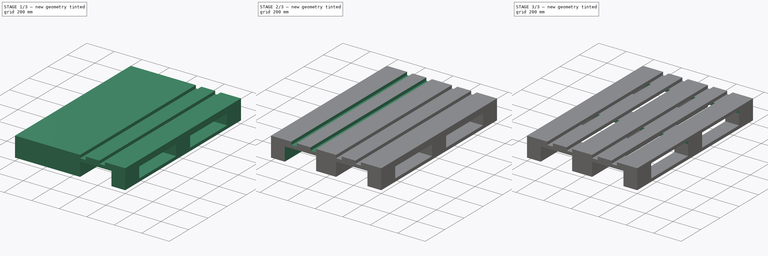
[diagram: build sequence overview — one tinted view per stage of 3, left to right]
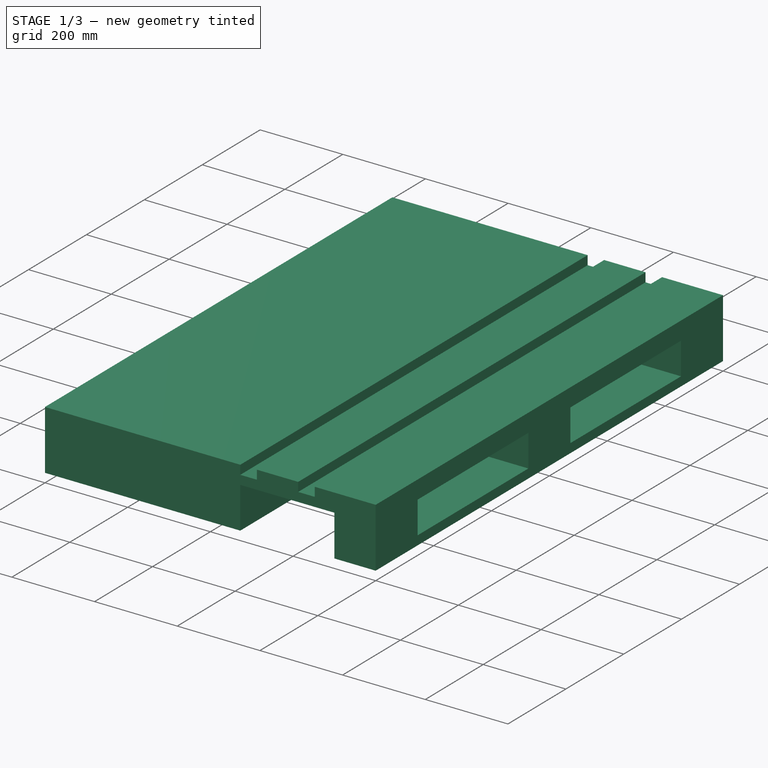
[diagram: stage 1 of 3 — iso view after this stage's code; geometry added in this stage tinted green]
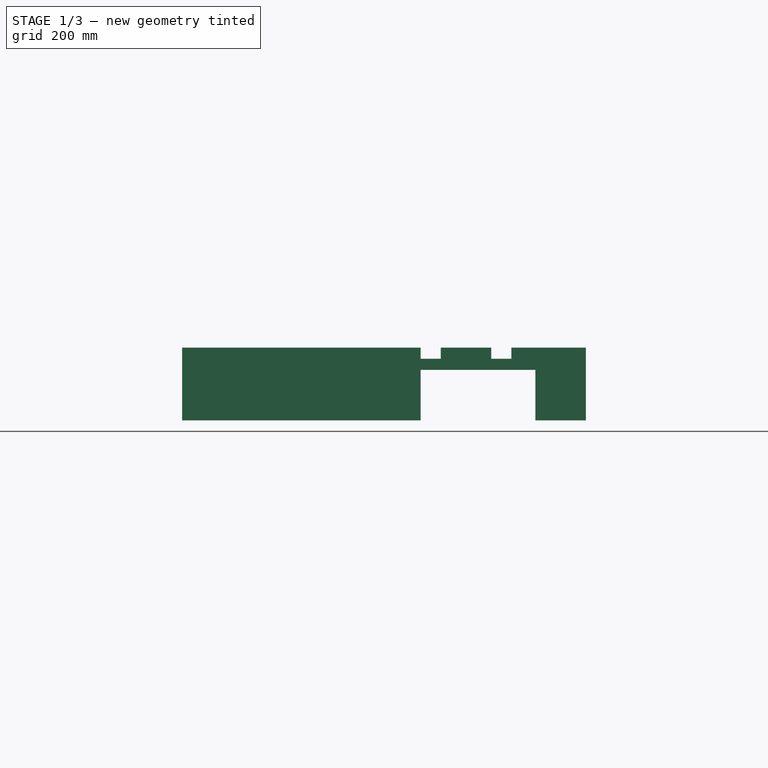
[diagram: stage 1 of 3 — front view after this stage's code; geometry added in this stage tinted green]
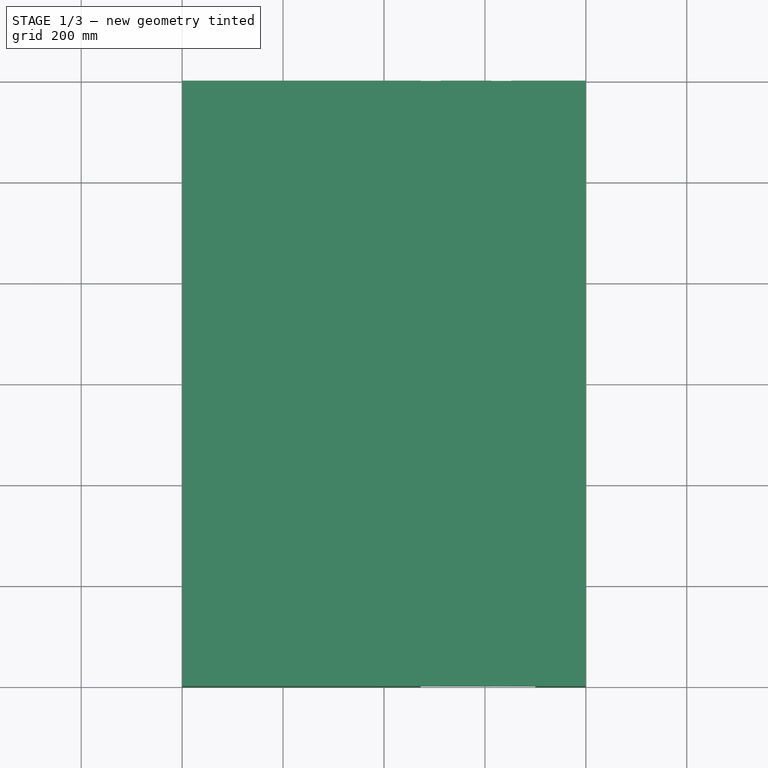
[diagram: stage 1 of 3 — top view after this stage's code; geometry added in this stage tinted green]
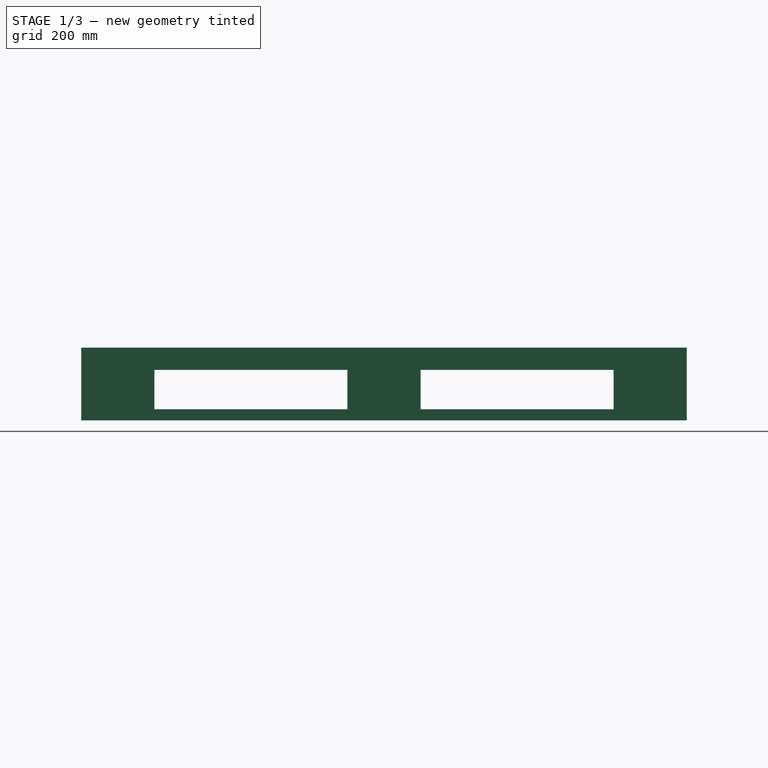
[diagram: stage 1 of 3 — right view after this stage's code; geometry added in this stage tinted green]
FCSTD DOCUMENT  (FreeCAD 0.19R24267 +148 (Git))
Label: Europalette
License: All rights reserved
LicenseURL: http://en.wikipedia.org/wiki/All_rights_reserved
objects: Sketcher::SketchObject×5, PartDesign::Pocket×4, PartDesign::Pad×1, PartDesign::Body×1
note: 16 computed .brp shape members not serialized (recipe doc carries the construction recipe); baked Part::Feature solids carry a one-line shape summary decoded from their .brp

FEATURE [Sketcher::SketchObject] Sketch
  FullyConstrained = true
  MapMode = 5
  Placement = pos=(0,0,0) rot=(0.57735,0.57735,0.57735;2.0944rad)
  Support = -> [YZ_Plane]
  sketch-geometry (12):
    g0: LineSegment StartX=-600 StartY=-72 StartZ=0 EndX=600 EndY=-72 EndZ=0
    g1: LineSegment StartX=600 StartY=-72 StartZ=0 EndX=600 EndY=72 EndZ=0
    g2: LineSegment StartX=600 StartY=72 StartZ=0 EndX=-600 EndY=72 EndZ=0
    g3: LineSegment StartX=-600 StartY=72 StartZ=0 EndX=-600 EndY=-72 EndZ=0
    g4: LineSegment StartX=-455 StartY=28 StartZ=0 EndX=-72.5 EndY=28 EndZ=0
    g5: LineSegment StartX=-72.5 StartY=28 StartZ=0 EndX=-72.5 EndY=-50 EndZ=0
    g6: LineSegment StartX=-72.5 StartY=-50 StartZ=0 EndX=-455 EndY=-50 EndZ=0
    g7: LineSegment StartX=-455 StartY=-50 StartZ=0 EndX=-455 EndY=28 EndZ=0
    g8: LineSegment StartX=72.5 StartY=28 StartZ=0 EndX=455 EndY=28 EndZ=0
    g9: LineSegment StartX=455 StartY=28 StartZ=0 EndX=455 EndY=-50 EndZ=0
    g10: LineSegment StartX=455 StartY=-50 StartZ=0 EndX=72.5 EndY=-50 EndZ=0
    g11: LineSegment StartX=72.5 StartY=-50 StartZ=0 EndX=72.5 EndY=28 EndZ=0
  constraints (34):
    c: Coincident(g0,g1)
    c: Coincident(g1,g2)
    c: Coincident(g2,g3)
    c: Coincident(g3,g0)
    c: Horizontal(g0)
    c: Vertical(g1)
    c: DistanceX(g2,g2) = 1200
    c: DistanceY(g3,g3) = 144
    c: Symmetric(g2,g1,g-2)
    c: Symmetric(g0,g2,g-1)
    c: Coincident(g4,g5)
    c: Coincident(g5,g6)
    c: Coincident(g6,g7)
    c: Coincident(g7,g4)
    c: Horizontal(g4)
    c: Horizontal(g6)
    c: Vertical(g5)
    c: Vertical(g7)
    c: Coincident(g8,g9)
    c: Coincident(g9,g10)
    c: Coincident(g10,g11)
    c: Coincident(g11,g8)
    c: Horizontal(g8)
    c: Horizontal(g10)
    c: Vertical(g9)
    c: Vertical(g11)
    c: DistanceX(g4,g4) = 382.5
    c: DistanceX(g8,g8) = 382.5
    c: Distance(g8,g1) = 145
    c: Distance(g4,g3) = 145
    c: Distance(g6,g0) = 22
    c: DistanceY(g7,g7) = 78
    c: Distance(g10,g0) = 22
    c: Distance(g8,g10) = 78
FEATURE [PartDesign::Pad] Pad
  Direction = (1,1,1)
  Length = 400
  Length2 = 400
  Placement = pos=(0,0,0) rot=(0.57735,0.57735,0.57735;2.0944rad)
  Profile = -> Sketch
  Type = 4
FEATURE [Sketcher::SketchObject] Sketch001
  FullyConstrained = true
  MapMode = 5
  Placement = pos=(-2.665e-13,-600,1.998e-13) rot=(-0.57735,-0.57735,0.57735;4.18879rad)
  Support = -> [Pad]
  sketch-geometry (12):
    g0: LineSegment StartX=72 StartY=72.5 StartZ=0 EndX=-28 EndY=72.5 EndZ=0
    g1: LineSegment StartX=-28 StartY=72.5 StartZ=0 EndX=-28 EndY=300 EndZ=0
    g2: LineSegment StartX=-28 StartY=300 StartZ=0 EndX=72 EndY=300 EndZ=0
    g3: LineSegment StartX=72 StartY=300 StartZ=0 EndX=72 EndY=72.5 EndZ=0
    g4: LineSegment StartX=-72 StartY=72.5 StartZ=0 EndX=-50 EndY=72.5 EndZ=0
    g5: LineSegment StartX=-50 StartY=72.5 StartZ=0 EndX=-50 EndY=112.5 EndZ=0
    g6: LineSegment StartX=-50 StartY=112.5 StartZ=0 EndX=-72 EndY=112.5 EndZ=0
    g7: LineSegment StartX=-72 StartY=112.5 StartZ=0 EndX=-72 EndY=72.5 EndZ=0
    g8: LineSegment StartX=-72 StartY=212.5 StartZ=0 EndX=-50 EndY=212.5 EndZ=0
    g9: LineSegment StartX=-50 StartY=212.5 StartZ=0 EndX=-50 EndY=252.5 EndZ=0
    g10: LineSegment StartX=-50 StartY=252.5 StartZ=0 EndX=-72 EndY=252.5 EndZ=0
    g11: LineSegment StartX=-72 StartY=252.5 StartZ=0 EndX=-72 EndY=212.5 EndZ=0
  constraints (36):
    c: Coincident(g0,g1)
    c: Coincident(g1,g2)
    c: Coincident(g2,g3)
    c: Coincident(g3,g0)
    c: Horizontal(g0)
    c: Horizontal(g2)
    c: Vertical(g1)
    c: Vertical(g3)
    c: Distance(g0) = 100
    c: Distance(g-1,g0) = 72.5
    c: Distance(g0,g2) = 227.5
    c: Distance(g-1,g3) = 72
    c: Coincident(g4,g5)
    c: Coincident(g5,g6)
    c: Coincident(g6,g7)
    c: Coincident(g7,g4)
    c: Horizontal(g4)
    c: Horizontal(g6)
    c: Vertical(g5)
    c: Vertical(g7)
    c: Coincident(g8,g9)
    c: Coincident(g9,g10)
    c: Coincident(g10,g11)
    c: Coincident(g11,g8)
    c: Horizontal(g8)
    c: Horizontal(g10)
    c: Vertical(g9)
    c: Vertical(g11)
    c: DistanceY(g7,g7) = 40
    c: DistanceY(g11,g11) = 40
    c: DistanceX(g6,g6) = 22
    c: DistanceX(g8,g8) = 22
    c: Distance(g8,g6) = 100
    c: Distance(g-1,g4) = 72.5
    c: Distance(g-1,g7) = 72
    c: Distance(g-1,g11) = 72
FEATURE [Sketcher::SketchObject] MirroredSketch
  FullyConstrained = false
  Placement = pos=(0,-600,0) rot=(-0.57735,-0.57735,0.57735;4.18879rad)
  sketch-geometry (12):
    g0: LineSegment StartX=72 StartY=-72.5 StartZ=0 EndX=-28 EndY=-72.5 EndZ=0
    g1: LineSegment StartX=-28 StartY=-72.5 StartZ=0 EndX=-28 EndY=-300 EndZ=0
    g2: LineSegment StartX=-28 StartY=-300 StartZ=0 EndX=72 EndY=-300 EndZ=0
    g3: LineSegment StartX=72 StartY=-300 StartZ=0 EndX=72 EndY=-72.5 EndZ=0
    g4: LineSegment StartX=-72 StartY=-72.5 StartZ=0 EndX=-50 EndY=-72.5 EndZ=0
    g5: LineSegment StartX=-50 StartY=-72.5 StartZ=0 EndX=-50 EndY=-112.5 EndZ=0
    g6: LineSegment StartX=-50 StartY=-112.5 StartZ=0 EndX=-72 EndY=-112.5 EndZ=0
    g7: LineSegment StartX=-72 StartY=-112.5 StartZ=0 EndX=-72 EndY=-72.5 EndZ=0
    g8: LineSegment StartX=-72 StartY=-212.5 StartZ=0 EndX=-50 EndY=-212.5 EndZ=0
    g9: LineSegment StartX=-50 StartY=-212.5 StartZ=0 EndX=-50 EndY=-252.5 EndZ=0
    g10: LineSegment StartX=-50 StartY=-252.5 StartZ=0 EndX=-72 EndY=-252.5 EndZ=0
    g11: LineSegment StartX=-72 StartY=-252.5 StartZ=0 EndX=-72 EndY=-212.5 EndZ=0
  constraints (27):
    c: Coincident(g0,g1)
    c: Coincident(g1,g2)
    c: Coincident(g2,g3)
    c: Coincident(g3,g0)
    c: Horizontal(g0)
    c: Horizontal(g2)
    c: Vertical(g1)
    c: Vertical(g3)
    c: Distance(g0) = 100
    c: Distance(g0,g2) = 227.5
    c: Coincident(g4,g5)
    c: Coincident(g5,g6)
    c: Coincident(g6,g7)
    c: Coincident(g7,g4)
    c: Horizontal(g4)
    c: Horizontal(g6)
    c: Vertical(g5)
    c: Vertical(g7)
    c: Coincident(g8,g9)
    c: Coincident(g9,g10)
    c: Coincident(g10,g11)
    c: Coincident(g11,g8)
    c: Horizontal(g8)
    c: Horizontal(g10)
    c: Vertical(g9)
    c: Vertical(g11)
    c: Distance(g8,g6) = 100
FEATURE [PartDesign::Pocket] Pocket
  BaseFeature = -> Pad
  Length = 1200
  Length2 = 100
  Placement = pos=(0,0,0) rot=(0.57735,0.57735,0.57735;2.0944rad)
  Profile = -> Sketch001
  Type = 0
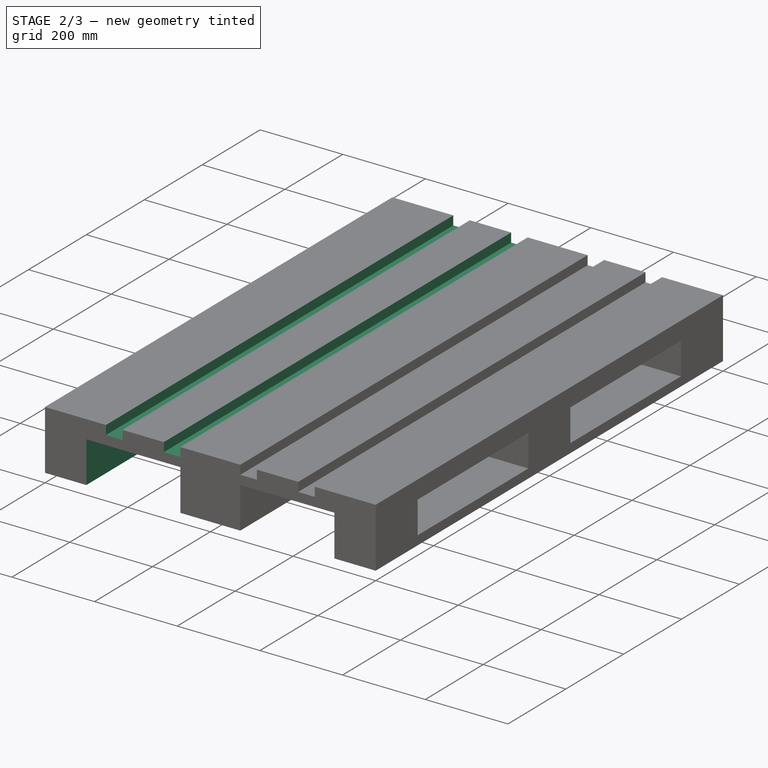
[diagram: stage 2 of 3 — iso view after this stage's code; geometry added in this stage tinted green]
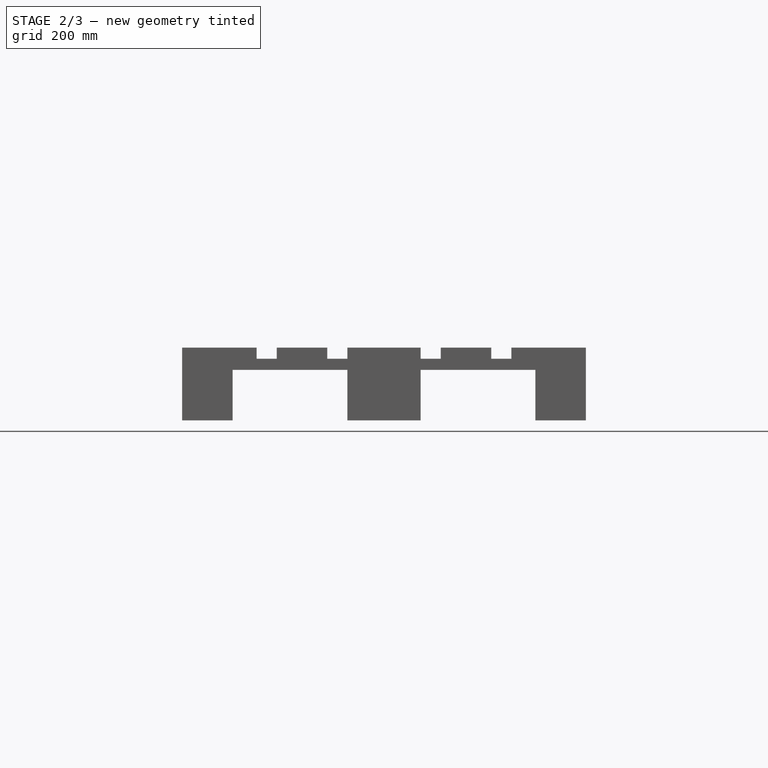
[diagram: stage 2 of 3 — front view after this stage's code; geometry added in this stage tinted green]
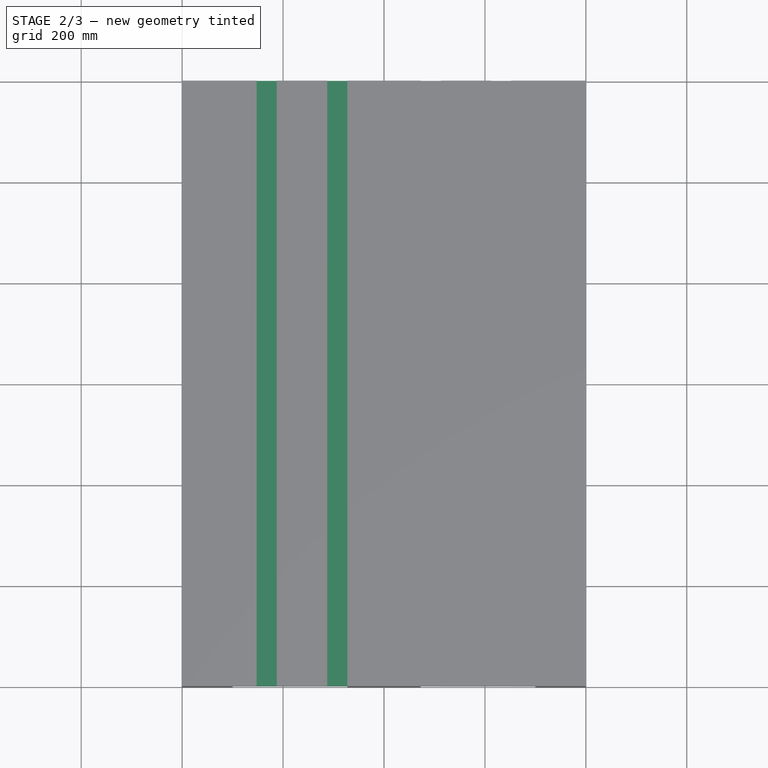
[diagram: stage 2 of 3 — top view after this stage's code; geometry added in this stage tinted green]
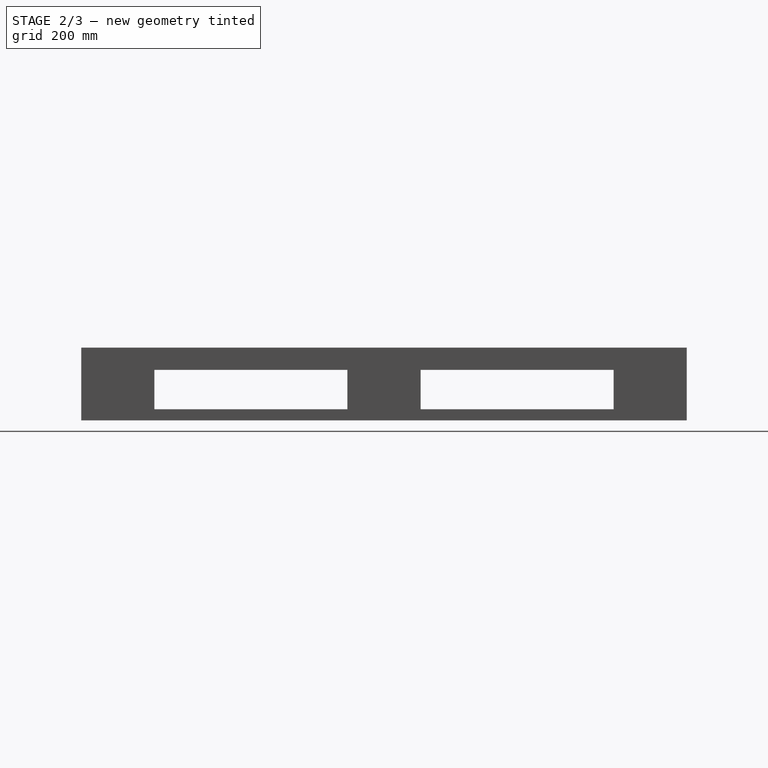
[diagram: stage 2 of 3 — right view after this stage's code; geometry added in this stage tinted green]
FEATURE [PartDesign::Pocket] Pocket001
  BaseFeature = -> Pocket
  Length = 1200
  Length2 = 100
  Placement = pos=(0,0,0) rot=(0.57735,0.57735,0.57735;2.0944rad)
  Profile = -> MirroredSketch
  Type = 0
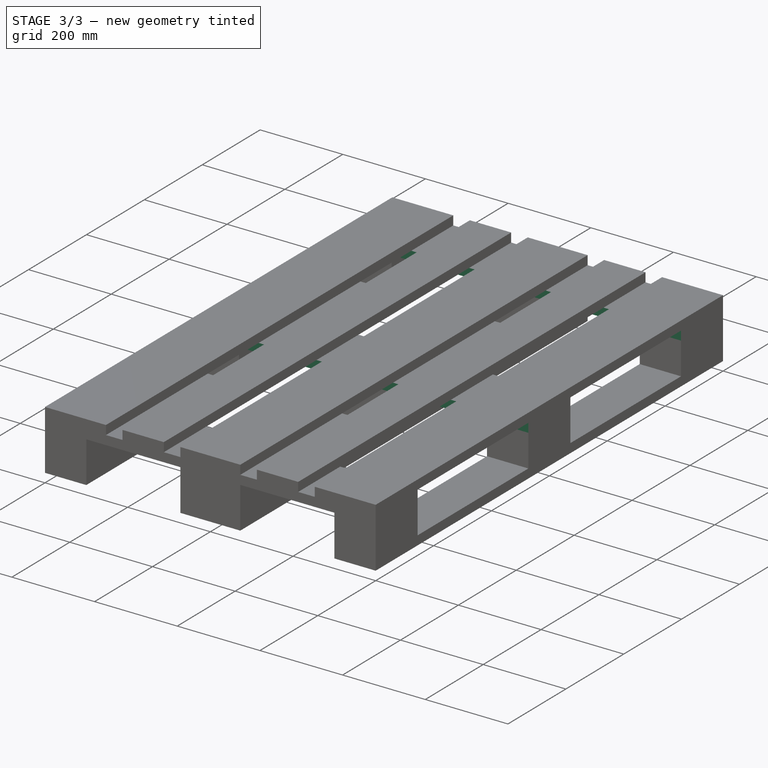
[diagram: stage 3 of 3 — iso view after this stage's code; geometry added in this stage tinted green]
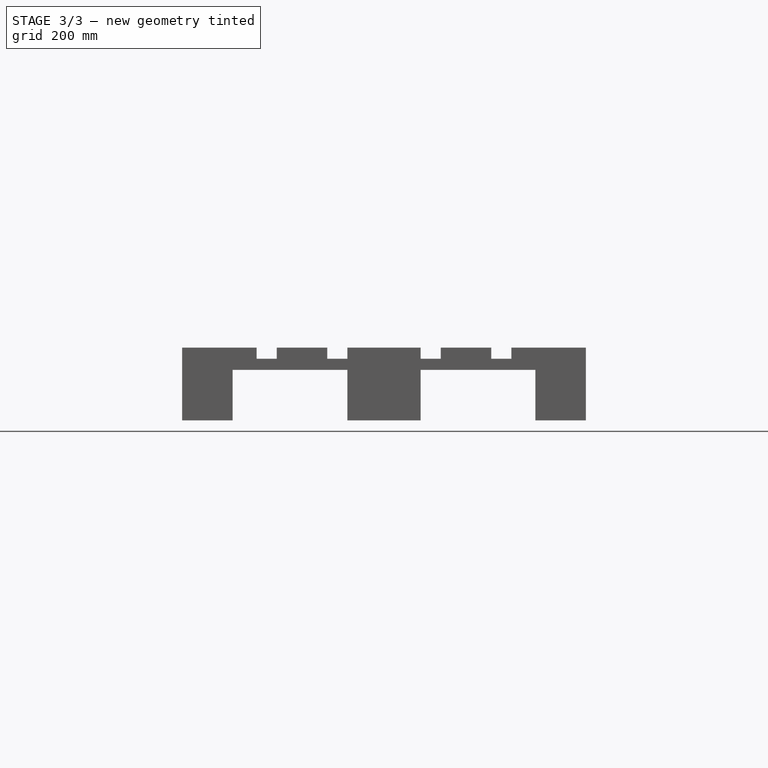
[diagram: stage 3 of 3 — front view after this stage's code; geometry added in this stage tinted green]
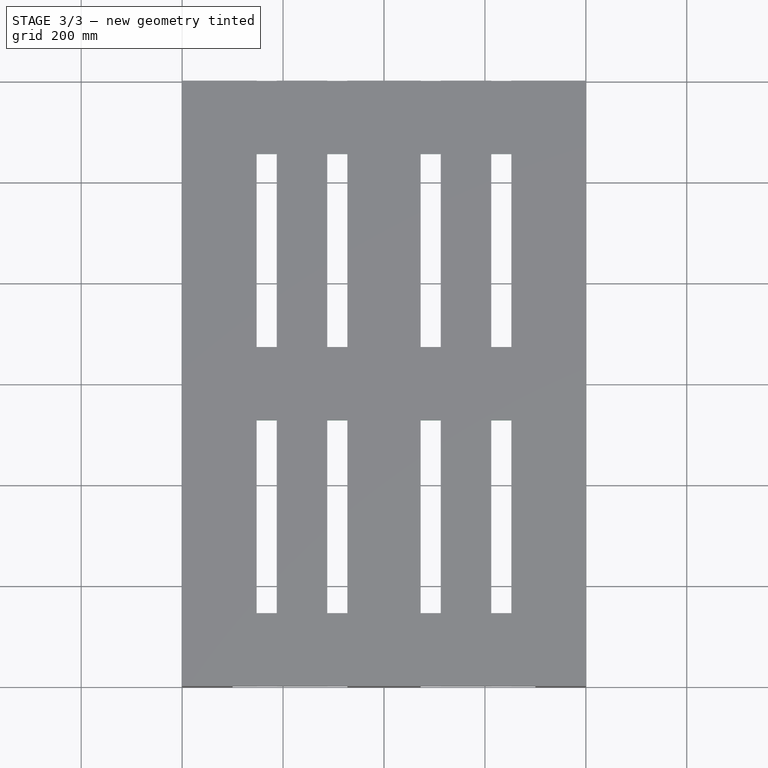
[diagram: stage 3 of 3 — top view after this stage's code; geometry added in this stage tinted green]
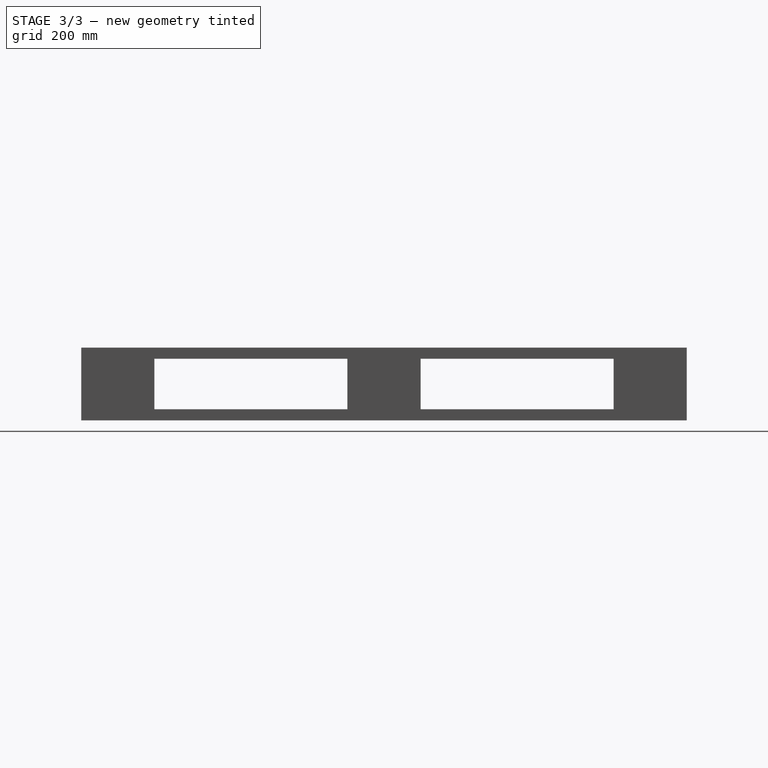
[diagram: stage 3 of 3 — right view after this stage's code; geometry added in this stage tinted green]
FEATURE [Sketcher::SketchObject] Sketch002
  FullyConstrained = true
  MapMode = 5
  Placement = pos=(400,-3.553e-13,2.22e-13) rot=(0.57735,0.57735,0.57735;2.0944rad)
  Support = -> [Pocket001]
  sketch-geometry (4):
    g0: LineSegment StartX=-455 StartY=-50 StartZ=0 EndX=-72.5 EndY=-50 EndZ=0
    g1: LineSegment StartX=-72.5 StartY=-50 StartZ=0 EndX=-72.5 EndY=50 EndZ=0
    g2: LineSegment StartX=-72.5 StartY=50 StartZ=0 EndX=-455 EndY=50 EndZ=0
    g3: LineSegment StartX=-455 StartY=50 StartZ=0 EndX=-455 EndY=-50 EndZ=0
  constraints (12):
    c: Coincident(g0,g1)
    c: Coincident(g1,g2)
    c: Coincident(g2,g3)
    c: Coincident(g3,g0)
    c: Horizontal(g0)
    c: Horizontal(g2)
    c: Vertical(g1)
    c: Vertical(g3)
    c: Distance(g-1,g1) = 72.5
    c: DistanceX(g2,g2) = 382.5
    c: DistanceY(g1,g1) = 100
    c: Distance(g-1,g0) = 50
FEATURE [Sketcher::SketchObject] MirroredSketch002
  FullyConstrained = false
  Placement = pos=(400,0,0) rot=(0.57735,0.57735,0.57735;2.0944rad)
  sketch-geometry (4):
    g0: LineSegment StartX=455 StartY=-50 StartZ=0 EndX=72.5 EndY=-50 EndZ=0
    g1: LineSegment StartX=72.5 StartY=-50 StartZ=0 EndX=72.5 EndY=50 EndZ=0
    g2: LineSegment StartX=72.5 StartY=50 StartZ=0 EndX=455 EndY=50 EndZ=0
    g3: LineSegment StartX=455 StartY=50 StartZ=0 EndX=455 EndY=-50 EndZ=0
  constraints (8):
    c: Coincident(g0,g1)
    c: Coincident(g1,g2)
    c: Coincident(g2,g3)
    c: Coincident(g3,g0)
    c: Horizontal(g0)
    c: Horizontal(g2)
    c: Vertical(g1)
    c: Vertical(g3)
FEATURE [PartDesign::Pocket] Pocket002
  BaseFeature = -> Pocket001
  Length = 800
  Length2 = 100
  Placement = pos=(0,0,0) rot=(0.57735,0.57735,0.57735;2.0944rad)
  Profile = -> Sketch002
  Type = 0
FEATURE [PartDesign::Pocket] Pocket003
  BaseFeature = -> Pocket002
  Length = 800
  Length2 = 100
  Placement = pos=(0,0,0) rot=(0.57735,0.57735,0.57735;2.0944rad)
  Profile = -> MirroredSketch002
  Type = 0
FEATURE [PartDesign::Body] Body
  Group = -> [Sketch,Pad,Sketch001,MirroredSketch,Pocket,Pocket001,Sketch002,MirroredSketch002,Pocket002,Pocket003]
  Origin = -> Origin
  Tip = -> Pocket003
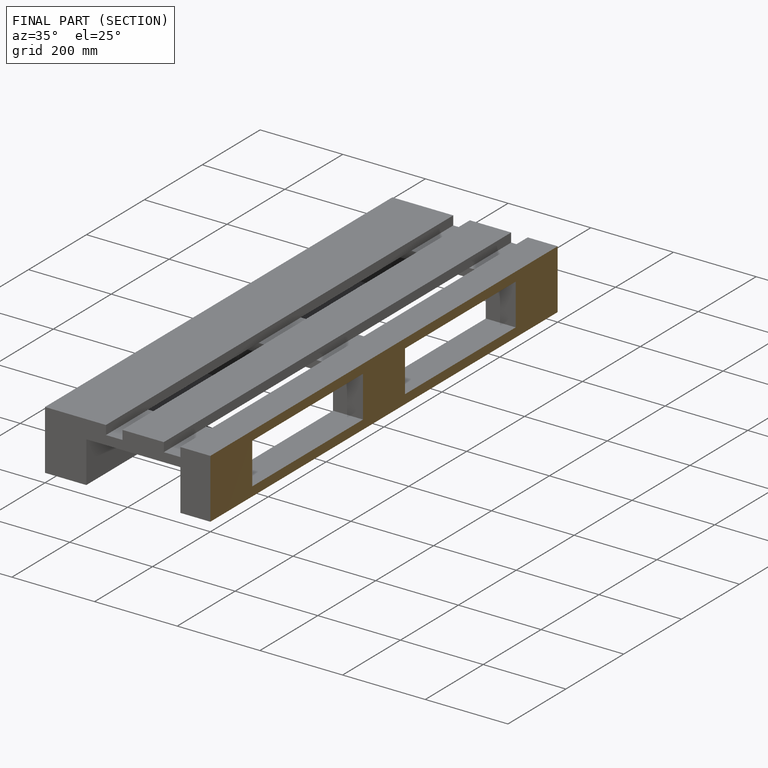
[diagram: finished part — half-section view (interior)]
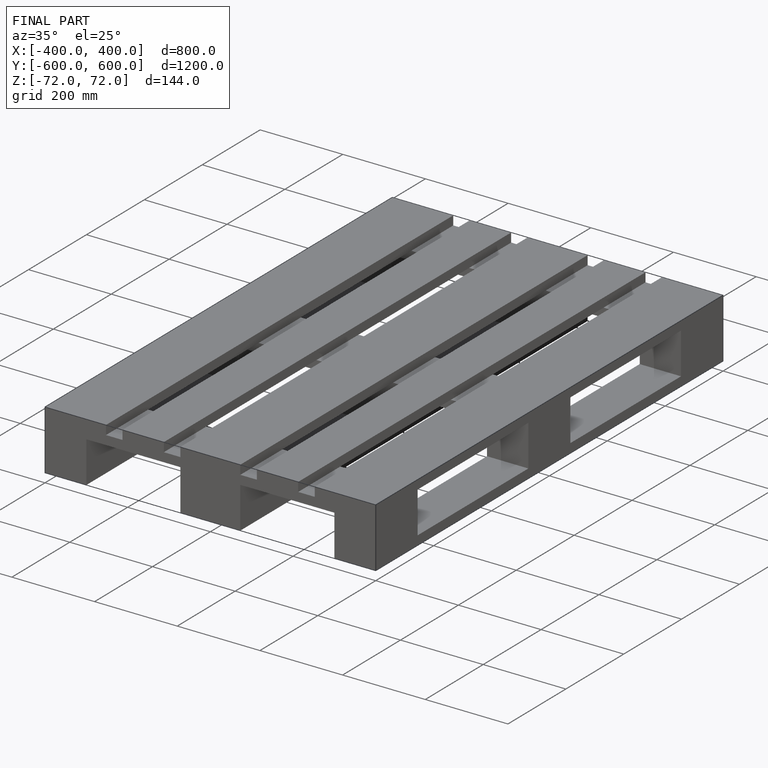
[diagram: finished part — iso view with bounding-box wireframe]
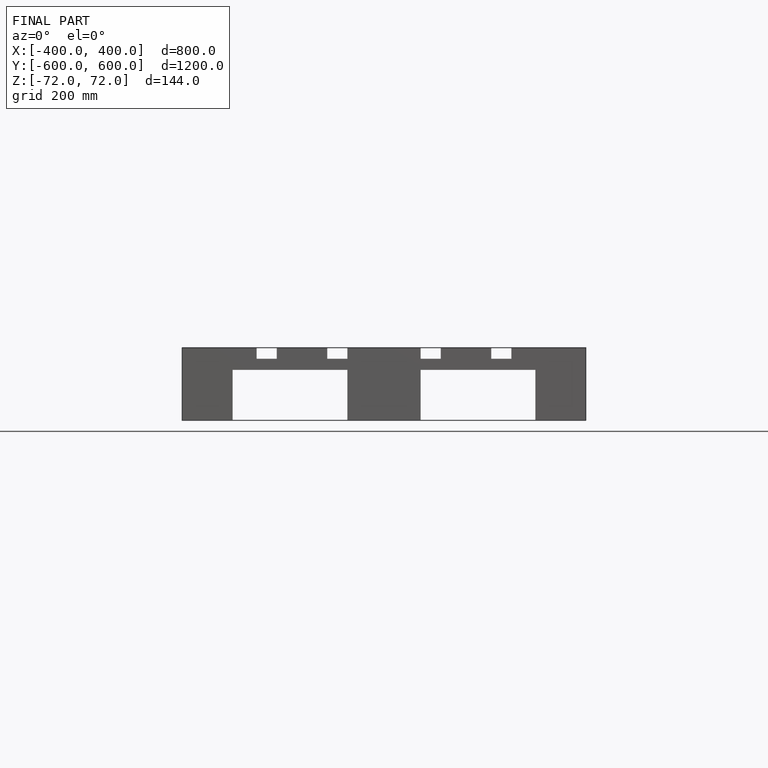
[diagram: finished part — front view with bounding-box wireframe]
